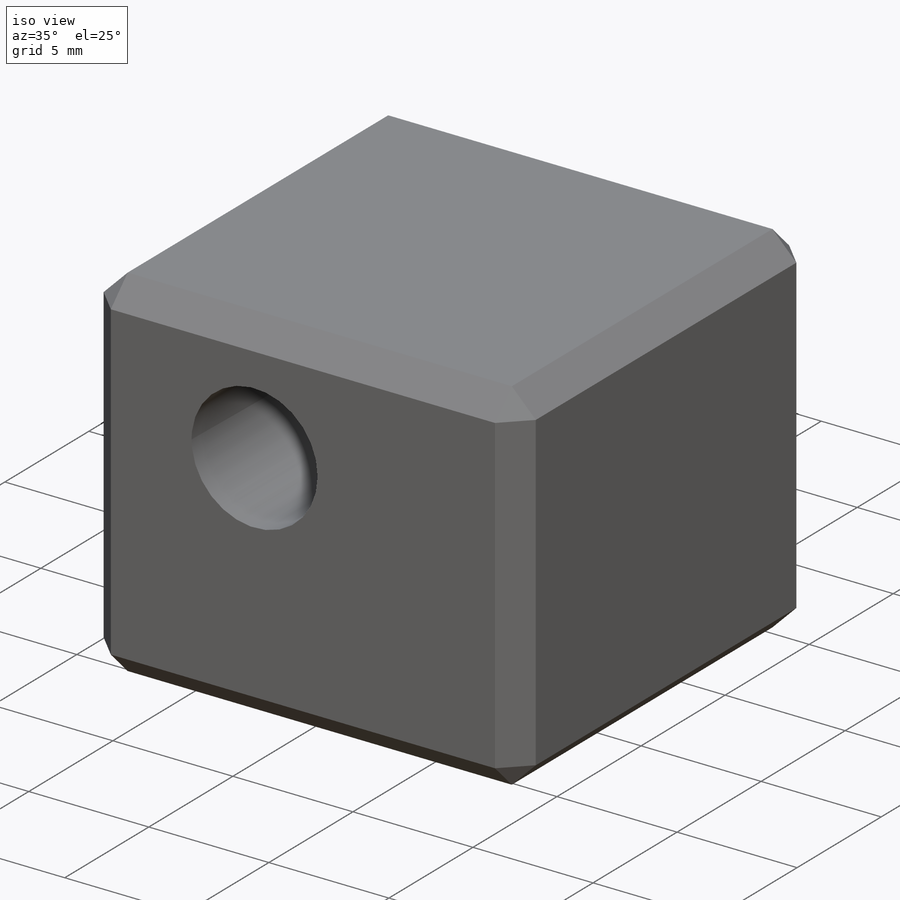
[diagram: iso view]
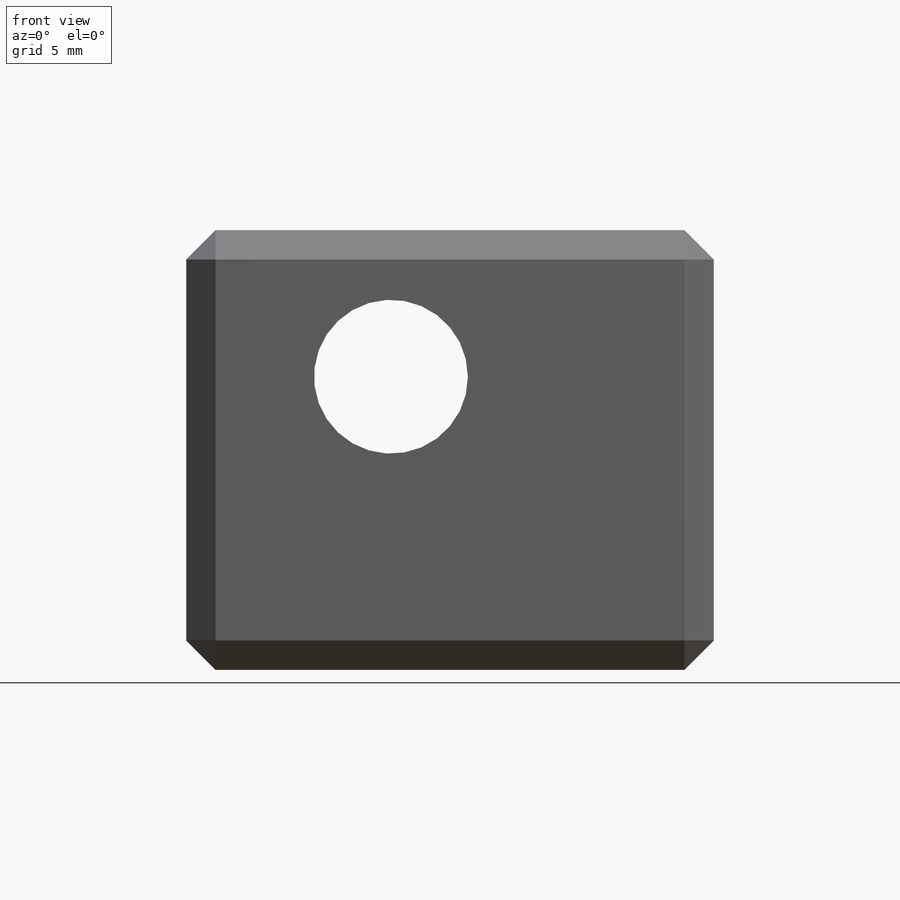
[diagram: front view]
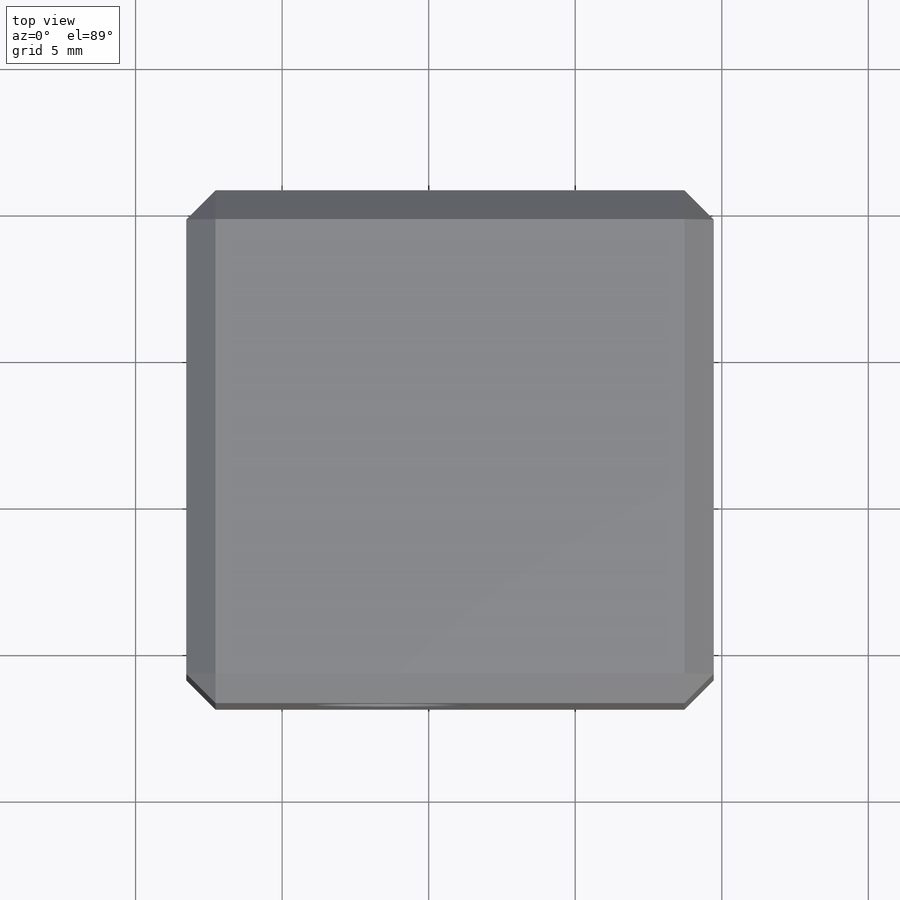
[diagram: top view]
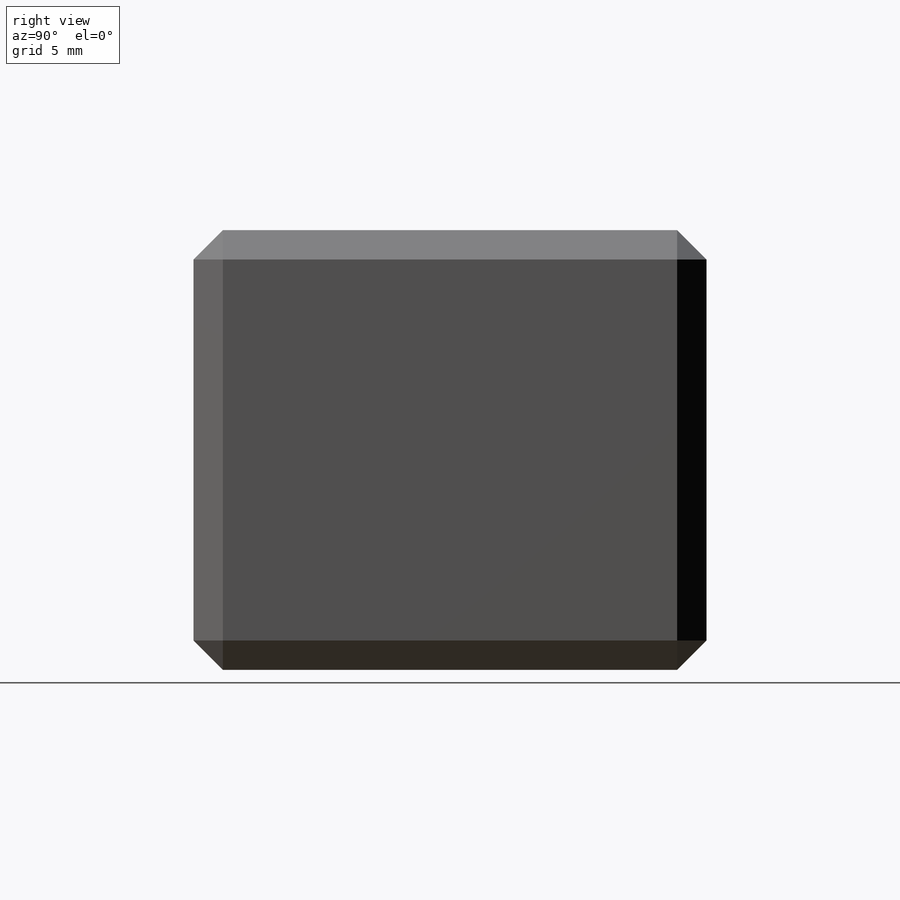
[diagram: right view]
SOLIDWORKS PART (.sldprt)
format: sldprt  version: not decoded by parser v0  size: 182,784 bytes
history: native  units: mm
features: sketch x4, cut_extrude x3, material x1, extrude x1, chamfer x1 (+16 scaffold rows collapsed)
feature tree (26):
  scaffold x16  (default folders/planes/origin — collapsed)
  material  "Material <not specified>"
  sketch  "Sketch1"  dims[D1=18.0mm D2=18.0mm]
  extrude  "Boss-Extrude1"  Depth=15mm
  sketch  "Sketch2"  dims[D1=5.25mm D2=11.0145mm D3=10.0mm]
  cut_extrude  "Cut-Extrude1"  [1 undecoded]
  sketch  "Sketch3"  dims[c1.D1=8.1mm c1.D2=8.1mm c1.D4=8.1mm c2.D2=8.1mm c2.D1=11.5mm c3.D2=6.67mm c3.D3=18.0mm c4.D2=4.817mm c4.D4=4.817mm]
  cut_extrude  "Cut-Extrude2"  Depth=7mm
  sketch  "Sketch5"
  cut_extrude  "Cut-Extrude3"  Depth=0.5mm
  chamfer  "Chamfer1"  Distance=1mm Angle=45deg
decode coverage: 7 of 9 modeling features carry decoded parameters
note: 1 parameter value undecoded
note: suppression state not decoded; provenance and decode notes live in map.json
